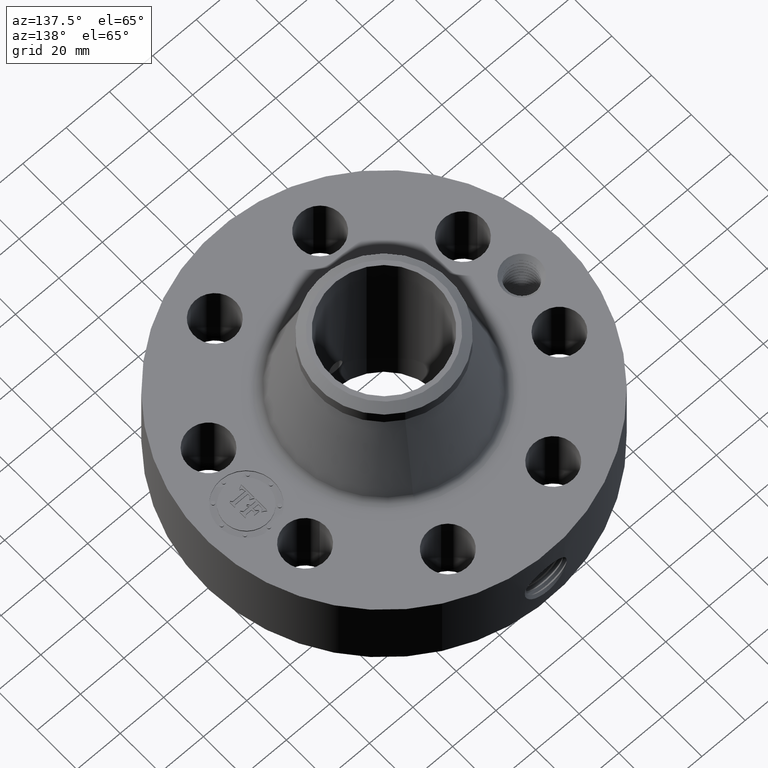
[diagram: clean part render]
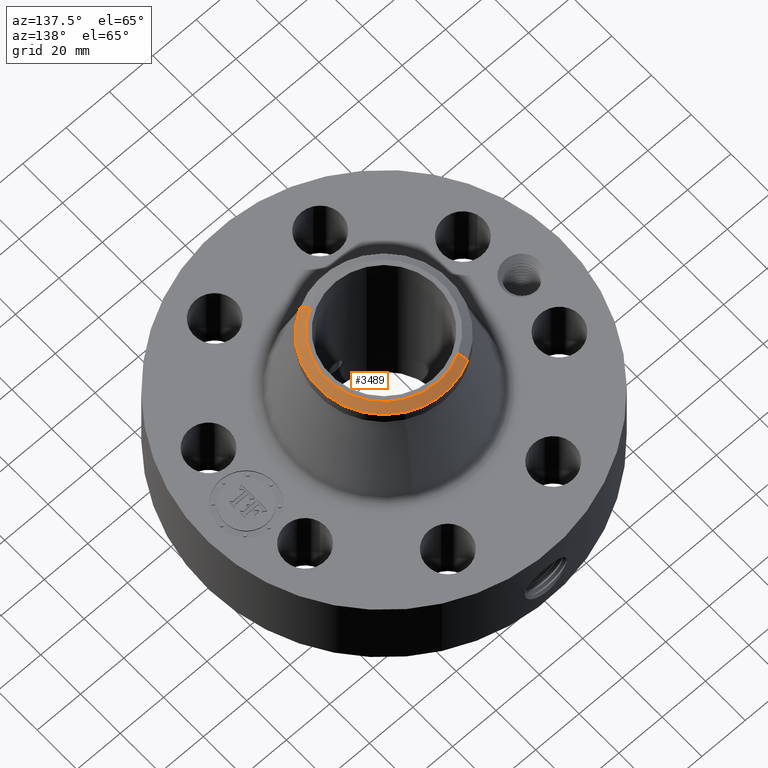
[diagram: same view with one face highlighted and labeled with its STEP entity id]
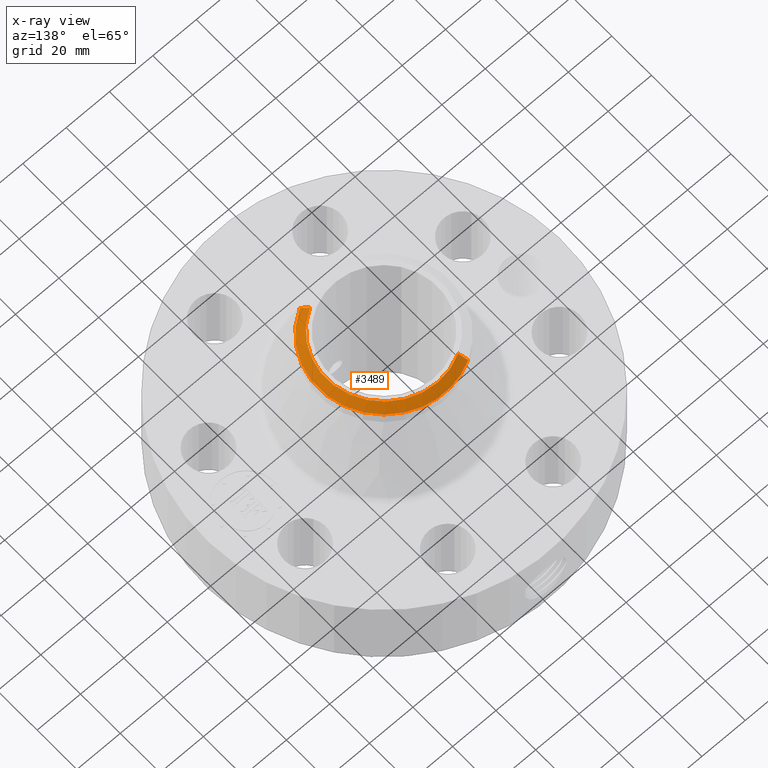
[diagram: x-ray of the same camera — body ghosted, the highlighted face saturated]
A machine part, auxiliary view. The second image highlights one B-rep face of the part: STEP entity #3489.
The next image is the same camera in x-ray: the body ghosted, the highlighted face saturated — about 0% of this face is hidden behind the body in this view.
In plain terms, the highlighted conical surface has half-angle 52.5 deg.
Its self-contained STEP definition (entity closure, byte-faithful):
#2596=AXIS2_PLACEMENT_3D('Circle Axis2P3D',#2594,#2595,$) ;
#3434=AXIS2_PLACEMENT_3D('Cone Axis2P3D',#3431,#3432,#3433) ;
#3472=AXIS2_PLACEMENT_3D('Circle Axis2P3D',#3470,#3471,$) ;
#3479=AXIS2_PLACEMENT_3D('Circle Axis2P3D',#3477,#3478,$) ;
#2594=CARTESIAN_POINT('Axis2P3D Location',(0.,0.,3.63000000001)) ;
#2598=CARTESIAN_POINT('Vertex',(0.502553102088,-0.919917282881,3.63000000001)) ;
#2600=CARTESIAN_POINT('Vertex',(-0.502553102088,0.919917282881,3.63000000001)) ;
#3431=CARTESIAN_POINT('Axis2P3D Location',(0.,0.,3.63000000001)) ;
#3436=CARTESIAN_POINT('Line Origine',(0.536534746515,-0.982120265768,3.57561192353)) ;
#3440=CARTESIAN_POINT('Vertex',(0.570516390941,-1.04432324865,3.52122384704)) ;
#3443=CARTESIAN_POINT('Line Origine',(-0.536534746515,0.982120265768,3.57561192353)) ;
#3447=CARTESIAN_POINT('Vertex',(-0.570516390941,1.04432324865,3.52122384704)) ;
#3470=CARTESIAN_POINT('Axis2P3D Location',(0.,0.,3.52122384704)) ;
#3474=CARTESIAN_POINT('Vertex',(0.570516390941,1.04432324865,3.52122384704)) ;
#3477=CARTESIAN_POINT('Axis2P3D Location',(0.,0.,3.52122384704)) ;
#2595=DIRECTION('Axis2P3D Direction',(0.,0.,-0.0393700787402)) ;
#3432=DIRECTION('Axis2P3D Direction',(-0.,-0.,-0.0393700787402)) ;
#3433=DIRECTION('Axis2P3D XDirection',(-0.0188750212049,0.0345504945626,0.)) ;
#3437=DIRECTION('Vector Direction',(0.014974561121,-0.02741075027,-0.023966985394)) ;
#3444=DIRECTION('Vector Direction',(-0.014974561121,0.02741075027,-0.023966985394)) ;
#3471=DIRECTION('Axis2P3D Direction',(0.,0.,-0.0393700787402)) ;
#3478=DIRECTION('Axis2P3D Direction',(0.,0.,-0.0393700787402)) ;
#3438=VECTOR('Line Direction',#3437,0.0393700787402) ;
#3445=VECTOR('Line Direction',#3444,0.0393700787402) ;
#3483=ORIENTED_EDGE('',*,*,#3449,.F.) ;
#3484=ORIENTED_EDGE('',*,*,#2602,.F.) ;
#3485=ORIENTED_EDGE('',*,*,#3442,.T.) ;
#3486=ORIENTED_EDGE('',*,*,#3476,.T.) ;
#3487=ORIENTED_EDGE('',*,*,#3481,.F.) ;
#3489=ADVANCED_FACE('PartBody',(#3488),#3435,.T.) ;
#2597=CIRCLE('generated circle',#2596,1.04824015748) ;
#3473=CIRCLE('generated circle',#3472,1.19) ;
#3480=CIRCLE('generated circle',#3479,1.19) ;
#3435=CONICAL_SURFACE('Cone',#3434,1.04824015748,0.916297857297) ;
#2602=EDGE_CURVE('',#2599,#2601,#2597,.F.) ;
#3442=EDGE_CURVE('',#2599,#3441,#3439,.T.) ;
#3449=EDGE_CURVE('',#2601,#3448,#3446,.T.) ;
#3476=EDGE_CURVE('',#3441,#3475,#3473,.F.) ;
#3481=EDGE_CURVE('',#3448,#3475,#3480,.T.) ;
#3482=EDGE_LOOP('',(#3483,#3484,#3485,#3486,#3487)) ;
#3488=FACE_OUTER_BOUND('',#3482,.T.) ;
#3439=LINE('Line',#3436,#3438) ;
#3446=LINE('Line',#3443,#3445) ;
#2599=VERTEX_POINT('',#2598) ;
#2601=VERTEX_POINT('',#2600) ;
#3441=VERTEX_POINT('',#3440) ;
#3448=VERTEX_POINT('',#3447) ;
#3475=VERTEX_POINT('',#3474) ;